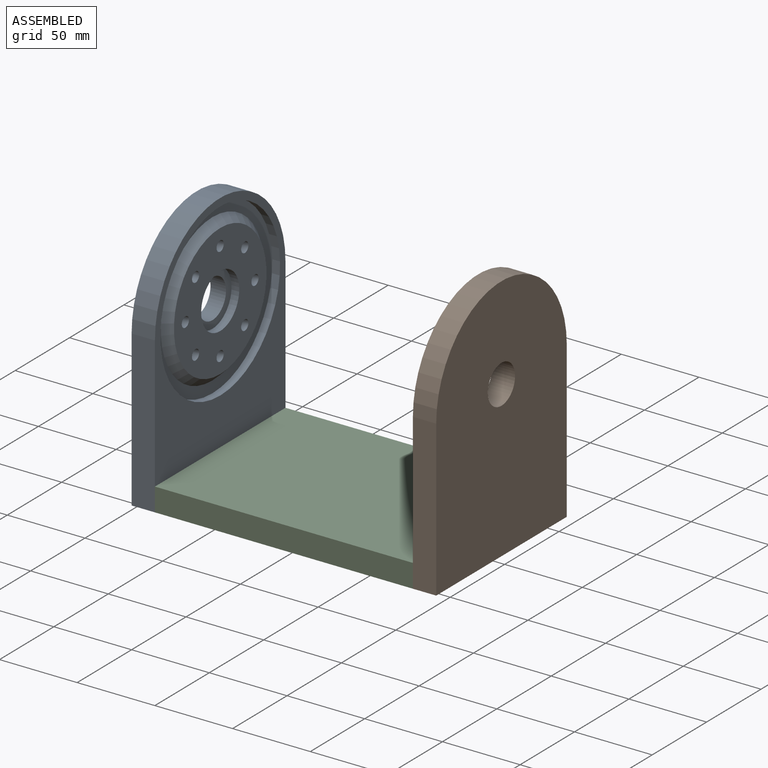
[diagram: assembled view]
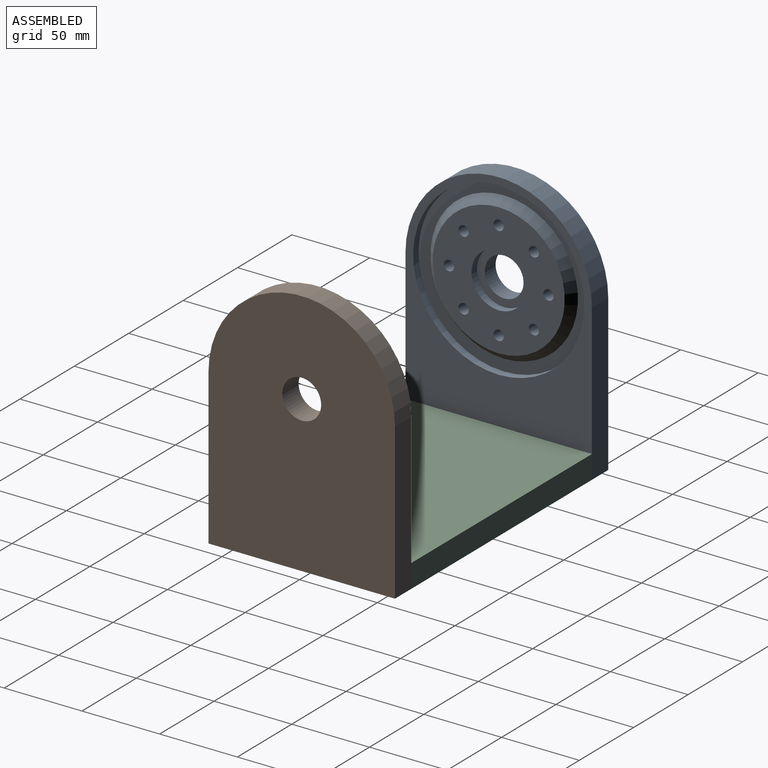
[diagram: assembled view, second angle]
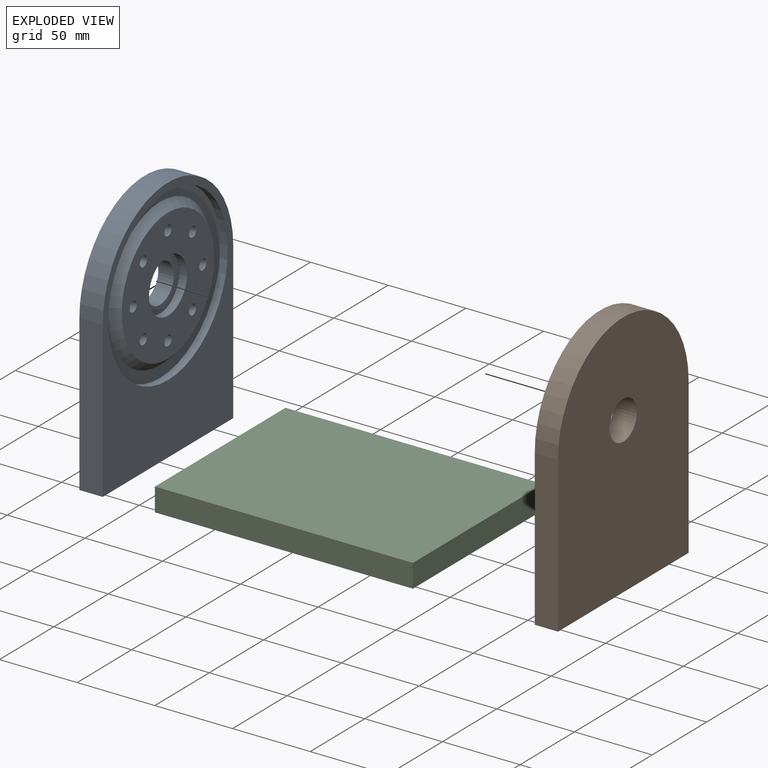
[diagram: exploded view]
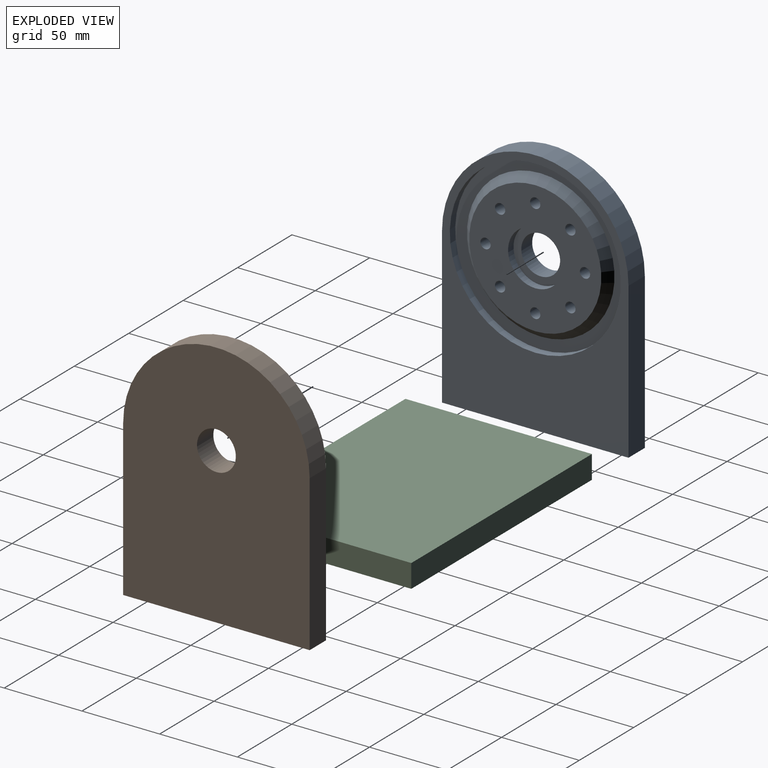
[diagram: exploded view, second angle]
ASSEMBLY  parts=3 mates=2
PART A: 37 faces, bbox 15x120x160 mm
  f0: cylinder r=3.3mm len=9mm, axis (-1,0,0), area 186.6mm2, adj f1,f22
  f1: plane 11.25x11.25mm, normal (-1,0,0), area 65.2mm2, adj f0,f2
  f2: cylinder r=5.62mm len=11.25mm, axis (-1,0,0), area 212.1mm2, adj f1,f28
  f3: cylinder r=3.3mm len=9mm, axis (-1,0,0), area 186.6mm2, adj f4,f22
  f4: plane 11.25x11.25mm, normal (-1,0,0), area 65.2mm2, adj f3,f5
  f5: cylinder r=5.62mm len=11.25mm, axis (-1,0,0), area 212.1mm2, adj f4,f28
  f6: cylinder r=3.3mm len=9mm, axis (-1,0,0), area 186.6mm2, adj f7,f22
  f7: plane 11.25x11.25mm, normal (-1,0,0), area 65.2mm2, adj f6,f8
  f8: cylinder r=5.62mm len=11.25mm, axis (-1,0,0), area 212.1mm2, adj f7,f28
  f9: cylinder r=3.3mm len=9mm, axis (-1,0,0), area 186.6mm2, adj f10,f22
  f10: plane 11.25x11.25mm, normal (-1,0,0), area 65.2mm2, adj f9,f11
  f11: cylinder r=5.62mm len=11.25mm, axis (-1,0,0), area 212.1mm2, adj f10,f28
  f12: cylinder r=3.3mm len=9mm, axis (-1,0,0), area 186.6mm2, adj f13,f22
  f13: plane 11.25x11.25mm, normal (-1,0,0), area 65.2mm2, adj f12,f14
  f14: cylinder r=5.62mm len=11.25mm, axis (-1,0,0), area 212.1mm2, adj f13,f28
  f15: cylinder r=3.3mm len=9mm, axis (-1,0,0), area 186.6mm2, adj f16,f22
  f16: plane 11.25x11.25mm, normal (-1,0,0), area 65.2mm2, adj f15,f17
  f17: cylinder r=5.62mm len=11.25mm, axis (-1,0,0), area 212.1mm2, adj f16,f28
  f18: cylinder r=3.3mm len=9mm, axis (-1,0,0), area 186.6mm2, adj f19,f22
  f19: plane 11.25x11.25mm, normal (-1,0,0), area 65.2mm2, adj f18,f20
  f20: cylinder r=5.62mm len=11.25mm, axis (-1,0,0), area 212.1mm2, adj f19,f28
  f21: cylinder r=12.5mm len=25mm, axis (-1,0,0), area 785.4mm2, adj f28,f33
  f22: plane 85x85mm, normal (1,0,0), area 4438.7mm2, adj f0,f3,f6,f9,f12,f15,f18,f31
  f23: plane 100x15mm, normal (0,1,0), area 1500mm2, adj f24,f26,f27,f28
  f24: cylinder r=60mm len=120mm, axis (-1,0,0), area 2827.4mm2, adj f23,f25,f27,f28
  f25: plane 100x15mm, normal (0,-1,0), area 1500mm2, adj f24,f26,f27,f28
  f26: plane 120x15mm, normal (0,0,-1), area 1800mm2, adj f23,f25,f27,f28
  f27: plane 160x120mm, normal (1,0,0), area 8151.5mm2, adj f23,f24,f25,f26,f29
  f28: plane 160x120mm, normal (-1,0,0), area 16368.8mm2, adj f2,f5,f8,f11,f14,f17,f20,f21
  f29: cylinder r=55mm len=110mm, axis (1,0,0), area 1727.9mm2, adj f27,f30
  f30: plane 110x110mm, normal (1,0,0), area 2415.1mm2, adj f29,f31
  f31: cone r=42.5mm half-angle=45deg, axis (-1,0,0), area 1999.3mm2, adj f22,f30
  f32: cylinder r=17.5mm len=35mm, axis (1,0,0), area 549.8mm2, adj f22,f33
  f33: plane 35x35mm, normal (1,0,0), area 471.2mm2, adj f21,f32
  f34: cylinder r=3.3mm len=9mm, axis (-1,0,0), area 186.6mm2, adj f22,f35
  f35: plane 11.25x11.25mm, normal (-1,0,0), area 65.2mm2, adj f34,f36
  f36: cylinder r=5.62mm len=11.25mm, axis (-1,0,0), area 212.1mm2, adj f28,f35
PART B: 11 faces, bbox 15x120x160 mm
  f0: plane 85x85mm, normal (-1,0,0), area 5183.6mm2, adj f4,f10
  f1: plane 100x15mm, normal (0,1,0), area 1500mm2, adj f2,f5,f6,f7
  f2: cylinder r=60mm len=120mm, axis (1,0,0), area 2827.4mm2, adj f1,f3,f6,f7
  f3: plane 100x15mm, normal (0,-1,0), area 1500mm2, adj f2,f5,f6,f7
  f4: cylinder r=12.5mm len=25mm, axis (1,0,0), area 1178.1mm2, adj f0,f7
  f5: plane 120x15mm, normal (0,0,-1), area 1800mm2, adj f1,f3,f6,f7
  f6: plane 160x120mm, normal (-1,0,0), area 8151.5mm2, adj f1,f2,f3,f5,f8
  f7: plane 160x120mm, normal (1,0,0), area 17164mm2, adj f1,f2,f3,f4,f5
  f8: cylinder r=55mm len=110mm, axis (-1,0,0), area 1727.9mm2, adj f6,f9
  f9: plane 110x110mm, normal (-1,0,0), area 2415.1mm2, adj f8,f10
  f10: cone r=42.5mm half-angle=45deg, axis (1,0,0), area 1999.3mm2, adj f0,f9
PART C: 6 faces, bbox 166x120x15 mm
  f0: plane 166x120mm, normal (0,0,1), area 19920mm2, adj f1,f3,f4,f5
  f1: plane 166x15mm, normal (0,-1,0), area 2490mm2, adj f0,f2,f4,f5
  f2: plane 166x120mm, normal (0,0,-1), area 19920mm2, adj f1,f3,f4,f5
  f3: plane 166x15mm, normal (0,1,0), area 2490mm2, adj f0,f2,f4,f5
  f4: plane 120x15mm, normal (1,0,0), area 1800mm2, adj f0,f1,f2,f3
  f5: plane 120x15mm, normal (-1,0,0), area 1800mm2, adj f0,f1,f2,f3
PLACE A t=(-98,0,100)mm
PLACE B t=(68,0,100)mm
PLACE C t=(-98,0,100)mm
MATE fastened B.f6 <-> C.f4  axis (-1,0,0) through (83,60,0)mm
MATE fastened A.f27 <-> C.f5  axis (1,0,0) through (-83,-60,0)mm
